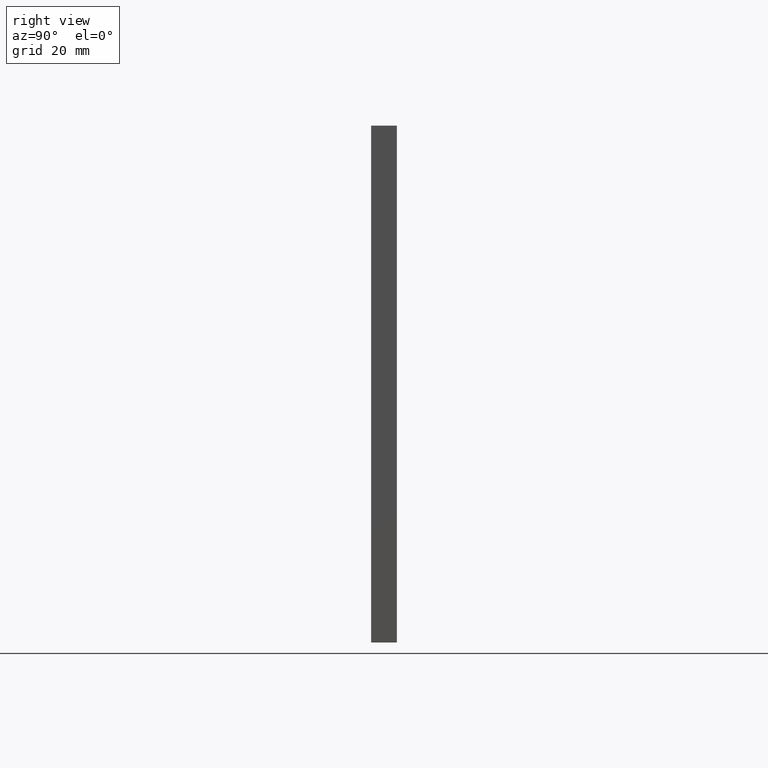
[diagram: clean part render]
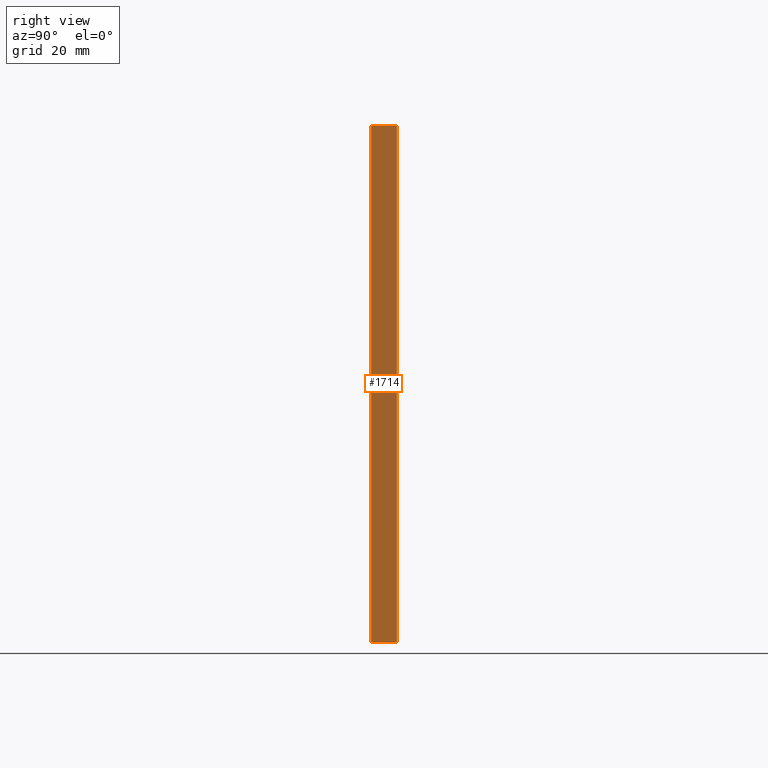
[diagram: same view with one face highlighted and labeled with its STEP entity id]
A machine part, right view. The second image highlights one B-rep face of the part: STEP entity #1714.
In plain terms, the highlighted planar face has unit normal (-1, 0, 0).
Its self-contained STEP definition (entity closure, byte-faithful):
#180 = PLANE ( 'NONE',  #6632 ) ;
#1402 = ORIENTED_EDGE ( 'NONE', *, *, #12160, .T. ) ;
#1714 = ADVANCED_FACE ( 'NONE', ( #8796 ), #180, .F. ) ;
#2381 = VERTEX_POINT ( 'NONE', #7955 ) ;
#2440 = DIRECTION ( 'NONE',  ( -1.156482317317871478E-16, -0.000000000000000000, -1.000000000000000000 ) ) ;
#2543 = EDGE_LOOP ( 'NONE', ( #10470, #4163, #5128, #1402 ) ) ;
#3168 = VERTEX_POINT ( 'NONE', #7172 ) ;
#4163 = ORIENTED_EDGE ( 'NONE', *, *, #6536, .F. ) ;
#5039 = DIRECTION ( 'NONE',  ( -0.000000000000000000, -1.000000000000000000, -0.000000000000000000 ) ) ;
#5128 = ORIENTED_EDGE ( 'NONE', *, *, #8271, .F. ) ;
#5321 = VERTEX_POINT ( 'NONE', #5323 ) ;
#5323 = CARTESIAN_POINT ( 'NONE',  ( 60.00000000000000000, 0.000000000000000000, 60.00000000000001421 ) ) ;
#5464 = VERTEX_POINT ( 'NONE', #11753 ) ;
#5536 = VECTOR ( 'NONE', #8866, 1000.000000000000000 ) ;
#6107 = VECTOR ( 'NONE', #11132, 1000.000000000000000 ) ;
#6122 = CARTESIAN_POINT ( 'NONE',  ( 59.99999999999998579, 0.000000000000000000, -59.99999999999998579 ) ) ;
#6153 = CARTESIAN_POINT ( 'NONE',  ( 60.00000000000000000, 6.000000000000000000, 60.00000000000001421 ) ) ;
#6179 = LINE ( 'NONE', #11625, #5536 ) ;
#6514 = CARTESIAN_POINT ( 'NONE',  ( 59.99999999999998579, 6.000000000000000000, -59.99999999999998579 ) ) ;
#6536 = EDGE_CURVE ( 'NONE', #3168, #2381, #6179, .T. ) ;
#6632 = AXIS2_PLACEMENT_3D ( 'NONE', #6514, #11699, #11564 ) ;
#7172 = CARTESIAN_POINT ( 'NONE',  ( 59.99999999999998579, 6.000000000000000000, -59.99999999999998579 ) ) ;
#7955 = CARTESIAN_POINT ( 'NONE',  ( 59.99999999999998579, 0.000000000000000000, -59.99999999999998579 ) ) ;
#8271 = EDGE_CURVE ( 'NONE', #5464, #3168, #8727, .T. ) ;
#8680 = LINE ( 'NONE', #6122, #6107 ) ;
#8727 = LINE ( 'NONE', #9651, #9052 ) ;
#8796 = FACE_OUTER_BOUND ( 'NONE', #2543, .T. ) ;
#8825 = LINE ( 'NONE', #6153, #10287 ) ;
#8866 = DIRECTION ( 'NONE',  ( -0.000000000000000000, -1.000000000000000000, -0.000000000000000000 ) ) ;
#9052 = VECTOR ( 'NONE', #2440, 1000.000000000000000 ) ;
#9651 = CARTESIAN_POINT ( 'NONE',  ( 59.99999999999998579, 6.000000000000000000, -59.99999999999998579 ) ) ;
#10287 = VECTOR ( 'NONE', #5039, 1000.000000000000000 ) ;
#10470 = ORIENTED_EDGE ( 'NONE', *, *, #11709, .T. ) ;
#11132 = DIRECTION ( 'NONE',  ( -1.156482317317871478E-16, -0.000000000000000000, -1.000000000000000000 ) ) ;
#11564 = DIRECTION ( 'NONE',  ( 1.156482317317871478E-16, 0.000000000000000000, 1.000000000000000000 ) ) ;
#11625 = CARTESIAN_POINT ( 'NONE',  ( 59.99999999999998579, 6.000000000000000000, -59.99999999999998579 ) ) ;
#11699 = DIRECTION ( 'NONE',  ( -1.000000000000000000, 0.000000000000000000, 1.156482317317871478E-16 ) ) ;
#11709 = EDGE_CURVE ( 'NONE', #5321, #2381, #8680, .T. ) ;
#11753 = CARTESIAN_POINT ( 'NONE',  ( 60.00000000000000000, 6.000000000000000000, 60.00000000000001421 ) ) ;
#12160 = EDGE_CURVE ( 'NONE', #5464, #5321, #8825, .T. ) ;